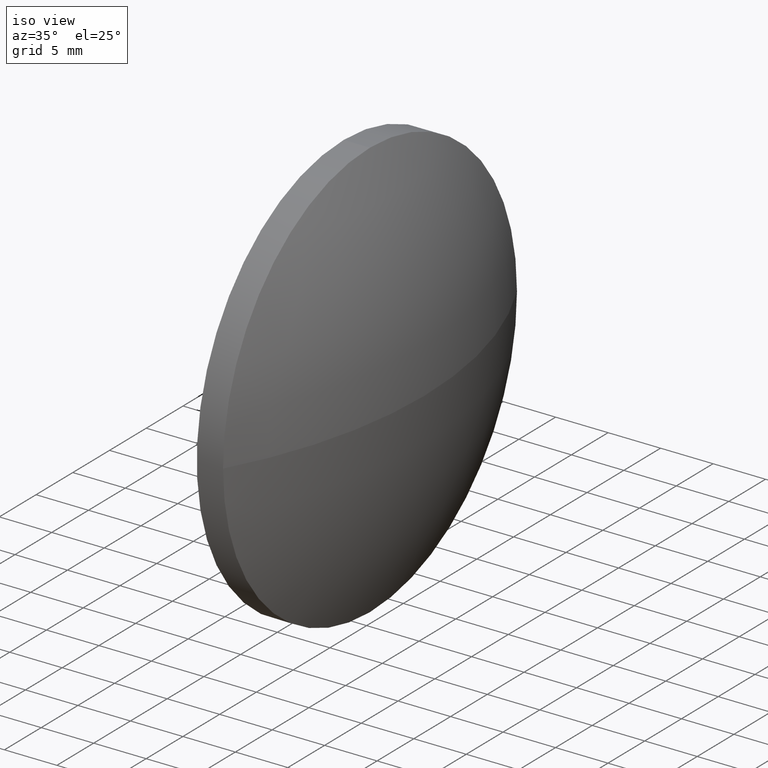
[diagram: clean part render]
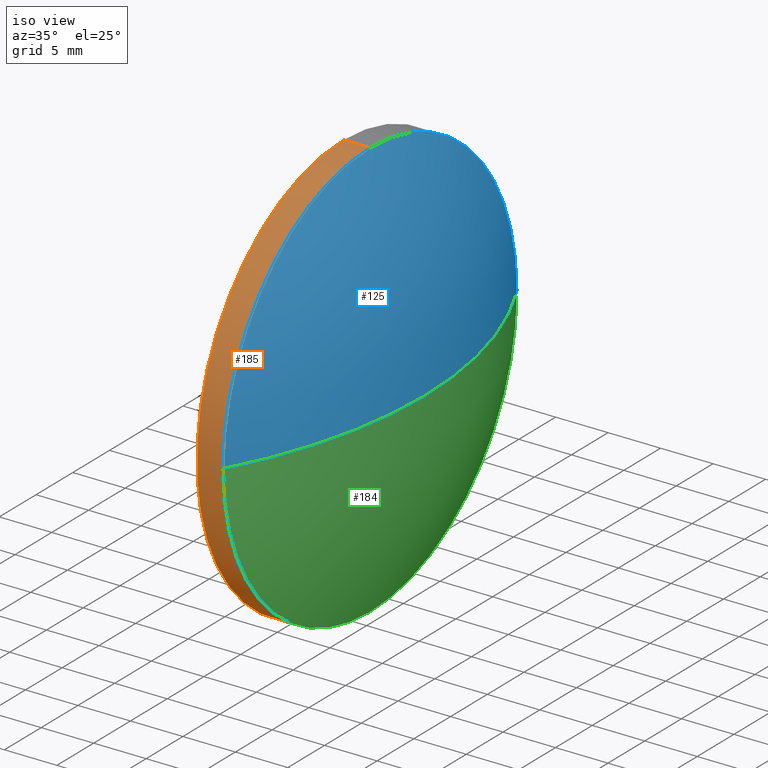
[diagram: same view with three faces highlighted in distinct colors, each labeled with its STEP entity id]
A machine part, iso view with three faces highlighted in distinct colors.
Their STEP definitions:

[orange] entity #185 — the highlighted cylindrical surface (partial cylindrical patch) has radius 20 mm, axis along (-1, -0, -0).
#7 = DIRECTION ( 'NONE',  ( 0.0000000000000000000, 0.0000000000000000000, 1.000000000000000000 ) ) ;
#9 = LINE ( 'NONE', #152, #27 ) ;
#11 = ORIENTED_EDGE ( 'NONE', *, *, #34, .T. ) ;
#18 = DIRECTION ( 'NONE',  ( -1.000000000000000000, -0.0000000000000000000, -0.0000000000000000000 ) ) ;
#20 = DIRECTION ( 'NONE',  ( 0.0000000000000000000, 0.0000000000000000000, 1.000000000000000000 ) ) ;
#25 = ORIENTED_EDGE ( 'NONE', *, *, #74, .T. ) ;
#27 = VECTOR ( 'NONE', #72, 1000.000000000000000 ) ;
#31 = DIRECTION ( 'NONE',  ( 0.0000000000000000000, 0.0000000000000000000, 1.000000000000000000 ) ) ;
#34 = EDGE_CURVE ( 'NONE', #165, #90, #163, .T. ) ;
#36 = EDGE_CURVE ( 'NONE', #90, #107, #9, .T. ) ;
#38 = ORIENTED_EDGE ( 'NONE', *, *, #139, .F. ) ;
#40 = EDGE_CURVE ( 'NONE', #145, #99, #166, .T. ) ;
#48 = ORIENTED_EDGE ( 'NONE', *, *, #36, .T. ) ;
#64 = CARTESIAN_POINT ( 'NONE',  ( 449.8436897934086600, -4.313953682595074400, -2.449293598294707300E-015 ) ) ;
#69 = CARTESIAN_POINT ( 'NONE',  ( 442.6491466128316000, 15.68604631740493400, -19.99999999999999600 ) ) ;
#71 = AXIS2_PLACEMENT_3D ( 'NONE', #104, #18, #134 ) ;
#72 = DIRECTION ( 'NONE',  ( -1.000000000000000000, -0.0000000000000000000, -0.0000000000000000000 ) ) ;
#74 = EDGE_CURVE ( 'NONE', #145, #165, #175, .T. ) ;
#81 = DIRECTION ( 'NONE',  ( -1.000000000000000000, -0.0000000000000000000, -0.0000000000000000000 ) ) ;
#85 = FACE_OUTER_BOUND ( 'NONE', #100, .T. ) ;
#88 = CARTESIAN_POINT ( 'NONE',  ( 449.8436897934086600, 15.68604631740493000, 0.0000000000000000000 ) ) ;
#89 = ORIENTED_EDGE ( 'NONE', *, *, #40, .F. ) ;
#90 = VERTEX_POINT ( 'NONE', #171 ) ;
#95 = CARTESIAN_POINT ( 'NONE',  ( 442.6491466128316000, 15.68604631740493000, 0.0000000000000000000 ) ) ;
#97 = CYLINDRICAL_SURFACE ( 'NONE', #98, 19.99999999999999600 ) ;
#98 = AXIS2_PLACEMENT_3D ( 'NONE', #95, #160, #7 ) ;
#99 = VERTEX_POINT ( 'NONE', #144 ) ;
#100 = EDGE_LOOP ( 'NONE', ( #89, #25, #11, #48, #38 ) ) ;
#104 = CARTESIAN_POINT ( 'NONE',  ( 449.8436897934086600, 15.68604631740493000, 0.0000000000000000000 ) ) ;
#107 = VERTEX_POINT ( 'NONE', #159 ) ;
#117 = DIRECTION ( 'NONE',  ( -1.000000000000000000, -0.0000000000000000000, -0.0000000000000000000 ) ) ;
#122 = VECTOR ( 'NONE', #154, 1000.000000000000000 ) ;
#131 = AXIS2_PLACEMENT_3D ( 'NONE', #88, #117, #31 ) ;
#134 = DIRECTION ( 'NONE',  ( 0.0000000000000000000, 0.0000000000000000000, 1.000000000000000000 ) ) ;
#139 = EDGE_CURVE ( 'NONE', #99, #107, #151, .T. ) ;
#144 = CARTESIAN_POINT ( 'NONE',  ( 447.3436897934086600, 15.68604631740493400, -19.99999999999999600 ) ) ;
#145 = VERTEX_POINT ( 'NONE', #179 ) ;
#147 = CARTESIAN_POINT ( 'NONE',  ( 447.3436897934086600, 15.68604631740493000, 0.0000000000000000000 ) ) ;
#151 = CIRCLE ( 'NONE', #156, 19.99999999999999600 ) ;
#152 = CARTESIAN_POINT ( 'NONE',  ( 442.6491466128316000, 15.68604631740493000, 19.99999999999999600 ) ) ;
#154 = DIRECTION ( 'NONE',  ( -1.000000000000000000, -0.0000000000000000000, -0.0000000000000000000 ) ) ;
#156 = AXIS2_PLACEMENT_3D ( 'NONE', #147, #81, #20 ) ;
#159 = CARTESIAN_POINT ( 'NONE',  ( 447.3436897934086600, 15.68604631740493000, 19.99999999999999600 ) ) ;
#160 = DIRECTION ( 'NONE',  ( -1.000000000000000000, -0.0000000000000000000, -0.0000000000000000000 ) ) ;
#163 = CIRCLE ( 'NONE', #131, 19.99999999999999600 ) ;
#165 = VERTEX_POINT ( 'NONE', #64 ) ;
#166 = LINE ( 'NONE', #69, #122 ) ;
#171 = CARTESIAN_POINT ( 'NONE',  ( 449.8436897934086600, 15.68604631740493000, 19.99999999999999600 ) ) ;
#175 = CIRCLE ( 'NONE', #71, 19.99999999999999600 ) ;
#179 = CARTESIAN_POINT ( 'NONE',  ( 449.8436897934086600, 15.68604631740493400, -19.99999999999999600 ) ) ;
#185 = ADVANCED_FACE ( 'NONE', ( #85 ), #97, .T. ) ;

[blue] entity #125 — the highlighted spherical surface has radius 41.2697 mm.
#1 = SPHERICAL_SURFACE ( 'NONE', #53, 41.26971953578339500 ) ;
#3 = EDGE_LOOP ( 'NONE', ( #62, #101, #54, #8 ) ) ;
#8 = ORIENTED_EDGE ( 'NONE', *, *, #34, .F. ) ;
#12 = AXIS2_PLACEMENT_3D ( 'NONE', #130, #41, #77 ) ;
#22 = DIRECTION ( 'NONE',  ( 0.0000000000000000000, 1.000000000000000000, 0.0000000000000000000 ) ) ;
#29 = CARTESIAN_POINT ( 'NONE',  ( 413.7439702576252800, 15.68604631740492600, 0.0000000000000000000 ) ) ;
#31 = DIRECTION ( 'NONE',  ( 0.0000000000000000000, 0.0000000000000000000, 1.000000000000000000 ) ) ;
#34 = EDGE_CURVE ( 'NONE', #165, #90, #163, .T. ) ;
#41 = DIRECTION ( 'NONE',  ( -1.000000000000000000, -0.0000000000000000000, -0.0000000000000000000 ) ) ;
#44 = DIRECTION ( 'NONE',  ( 0.0000000000000000000, 1.224646799147353200E-016, -1.000000000000000000 ) ) ;
#46 = EDGE_CURVE ( 'NONE', #141, #181, #59, .T. ) ;
#53 = AXIS2_PLACEMENT_3D ( 'NONE', #29, #58, #22 ) ;
#54 = ORIENTED_EDGE ( 'NONE', *, *, #123, .F. ) ;
#56 = DIRECTION ( 'NONE',  ( -0.0000000000000000000, 0.0000000000000000000, 1.000000000000000000 ) ) ;
#57 = CARTESIAN_POINT ( 'NONE',  ( 413.7439702576252800, 15.68604631740492600, 0.0000000000000000000 ) ) ;
#58 = DIRECTION ( 'NONE',  ( -0.0000000000000000000, 0.0000000000000000000, -1.000000000000000000 ) ) ;
#59 = CIRCLE ( 'NONE', #142, 41.26971953578340200 ) ;
#61 = CARTESIAN_POINT ( 'NONE',  ( 413.7439702576252800, 15.68604631740492600, 0.0000000000000000000 ) ) ;
#62 = ORIENTED_EDGE ( 'NONE', *, *, #173, .F. ) ;
#64 = CARTESIAN_POINT ( 'NONE',  ( 449.8436897934086600, -4.313953682595074400, -2.449293598294707300E-015 ) ) ;
#77 = DIRECTION ( 'NONE',  ( 0.0000000000000000000, 0.0000000000000000000, 1.000000000000000000 ) ) ;
#87 = AXIS2_PLACEMENT_3D ( 'NONE', #61, #44, #162 ) ;
#88 = CARTESIAN_POINT ( 'NONE',  ( 449.8436897934086600, 15.68604631740493000, 0.0000000000000000000 ) ) ;
#90 = VERTEX_POINT ( 'NONE', #171 ) ;
#101 = ORIENTED_EDGE ( 'NONE', *, *, #46, .T. ) ;
#117 = DIRECTION ( 'NONE',  ( -1.000000000000000000, -0.0000000000000000000, -0.0000000000000000000 ) ) ;
#118 = FACE_OUTER_BOUND ( 'NONE', #3, .T. ) ;
#123 = EDGE_CURVE ( 'NONE', #90, #181, #169, .T. ) ;
#124 = CARTESIAN_POINT ( 'NONE',  ( 449.8436897934086600, 35.68604631740493700, 0.0000000000000000000 ) ) ;
#125 = ADVANCED_FACE ( 'NONE', ( #118 ), #1, .T. ) ;
#130 = CARTESIAN_POINT ( 'NONE',  ( 449.8436897934086600, 15.68604631740493000, 0.0000000000000000000 ) ) ;
#131 = AXIS2_PLACEMENT_3D ( 'NONE', #88, #117, #31 ) ;
#133 = CIRCLE ( 'NONE', #87, 41.26971953578338800 ) ;
#141 = VERTEX_POINT ( 'NONE', #146 ) ;
#142 = AXIS2_PLACEMENT_3D ( 'NONE', #57, #56, #172 ) ;
#146 = CARTESIAN_POINT ( 'NONE',  ( 455.0136897934086700, 15.68604631740493000, 0.0000000000000000000 ) ) ;
#162 = DIRECTION ( 'NONE',  ( 0.0000000000000000000, 1.000000000000000000, 1.224646799147353500E-016 ) ) ;
#163 = CIRCLE ( 'NONE', #131, 19.99999999999999600 ) ;
#165 = VERTEX_POINT ( 'NONE', #64 ) ;
#169 = CIRCLE ( 'NONE', #12, 19.99999999999999600 ) ;
#171 = CARTESIAN_POINT ( 'NONE',  ( 449.8436897934086600, 15.68604631740493000, 19.99999999999999600 ) ) ;
#172 = DIRECTION ( 'NONE',  ( 1.000000000000000000, 0.0000000000000000000, 0.0000000000000000000 ) ) ;
#173 = EDGE_CURVE ( 'NONE', #141, #165, #133, .T. ) ;
#181 = VERTEX_POINT ( 'NONE', #124 ) ;

[green] entity #184 — the highlighted spherical surface has radius 41.2697 mm.
#2 = DIRECTION ( 'NONE',  ( 0.0000000000000000000, 0.0000000000000000000, 1.000000000000000000 ) ) ;
#4 = CARTESIAN_POINT ( 'NONE',  ( 413.7439702576252800, 15.68604631740492600, 0.0000000000000000000 ) ) ;
#18 = DIRECTION ( 'NONE',  ( -1.000000000000000000, -0.0000000000000000000, -0.0000000000000000000 ) ) ;
#23 = CIRCLE ( 'NONE', #180, 19.99999999999999600 ) ;
#39 = ORIENTED_EDGE ( 'NONE', *, *, #74, .F. ) ;
#42 = ORIENTED_EDGE ( 'NONE', *, *, #49, .F. ) ;
#44 = DIRECTION ( 'NONE',  ( 0.0000000000000000000, 1.224646799147353200E-016, -1.000000000000000000 ) ) ;
#46 = EDGE_CURVE ( 'NONE', #141, #181, #59, .T. ) ;
#49 = EDGE_CURVE ( 'NONE', #181, #145, #23, .T. ) ;
#50 = ORIENTED_EDGE ( 'NONE', *, *, #173, .T. ) ;
#56 = DIRECTION ( 'NONE',  ( -0.0000000000000000000, 0.0000000000000000000, 1.000000000000000000 ) ) ;
#57 = CARTESIAN_POINT ( 'NONE',  ( 413.7439702576252800, 15.68604631740492600, 0.0000000000000000000 ) ) ;
#59 = CIRCLE ( 'NONE', #142, 41.26971953578340200 ) ;
#61 = CARTESIAN_POINT ( 'NONE',  ( 413.7439702576252800, 15.68604631740492600, 0.0000000000000000000 ) ) ;
#64 = CARTESIAN_POINT ( 'NONE',  ( 449.8436897934086600, -4.313953682595074400, -2.449293598294707300E-015 ) ) ;
#65 = AXIS2_PLACEMENT_3D ( 'NONE', #4, #138, #108 ) ;
#71 = AXIS2_PLACEMENT_3D ( 'NONE', #104, #18, #134 ) ;
#74 = EDGE_CURVE ( 'NONE', #145, #165, #175, .T. ) ;
#87 = AXIS2_PLACEMENT_3D ( 'NONE', #61, #44, #162 ) ;
#91 = DIRECTION ( 'NONE',  ( -1.000000000000000000, -0.0000000000000000000, -0.0000000000000000000 ) ) ;
#104 = CARTESIAN_POINT ( 'NONE',  ( 449.8436897934086600, 15.68604631740493000, 0.0000000000000000000 ) ) ;
#108 = DIRECTION ( 'NONE',  ( 0.0000000000000000000, 1.000000000000000000, 0.0000000000000000000 ) ) ;
#124 = CARTESIAN_POINT ( 'NONE',  ( 449.8436897934086600, 35.68604631740493700, 0.0000000000000000000 ) ) ;
#128 = ORIENTED_EDGE ( 'NONE', *, *, #46, .F. ) ;
#133 = CIRCLE ( 'NONE', #87, 41.26971953578338800 ) ;
#134 = DIRECTION ( 'NONE',  ( 0.0000000000000000000, 0.0000000000000000000, 1.000000000000000000 ) ) ;
#138 = DIRECTION ( 'NONE',  ( -0.0000000000000000000, 0.0000000000000000000, -1.000000000000000000 ) ) ;
#141 = VERTEX_POINT ( 'NONE', #146 ) ;
#142 = AXIS2_PLACEMENT_3D ( 'NONE', #57, #56, #172 ) ;
#145 = VERTEX_POINT ( 'NONE', #179 ) ;
#146 = CARTESIAN_POINT ( 'NONE',  ( 455.0136897934086700, 15.68604631740493000, 0.0000000000000000000 ) ) ;
#149 = SPHERICAL_SURFACE ( 'NONE', #65, 41.26971953578339500 ) ;
#155 = EDGE_LOOP ( 'NONE', ( #128, #50, #39, #42 ) ) ;
#162 = DIRECTION ( 'NONE',  ( 0.0000000000000000000, 1.000000000000000000, 1.224646799147353500E-016 ) ) ;
#165 = VERTEX_POINT ( 'NONE', #64 ) ;
#172 = DIRECTION ( 'NONE',  ( 1.000000000000000000, 0.0000000000000000000, 0.0000000000000000000 ) ) ;
#173 = EDGE_CURVE ( 'NONE', #141, #165, #133, .T. ) ;
#174 = CARTESIAN_POINT ( 'NONE',  ( 449.8436897934086600, 15.68604631740493000, 0.0000000000000000000 ) ) ;
#175 = CIRCLE ( 'NONE', #71, 19.99999999999999600 ) ;
#179 = CARTESIAN_POINT ( 'NONE',  ( 449.8436897934086600, 15.68604631740493400, -19.99999999999999600 ) ) ;
#180 = AXIS2_PLACEMENT_3D ( 'NONE', #174, #91, #2 ) ;
#181 = VERTEX_POINT ( 'NONE', #124 ) ;
#183 = FACE_OUTER_BOUND ( 'NONE', #155, .T. ) ;
#184 = ADVANCED_FACE ( 'NONE', ( #183 ), #149, .T. ) ;